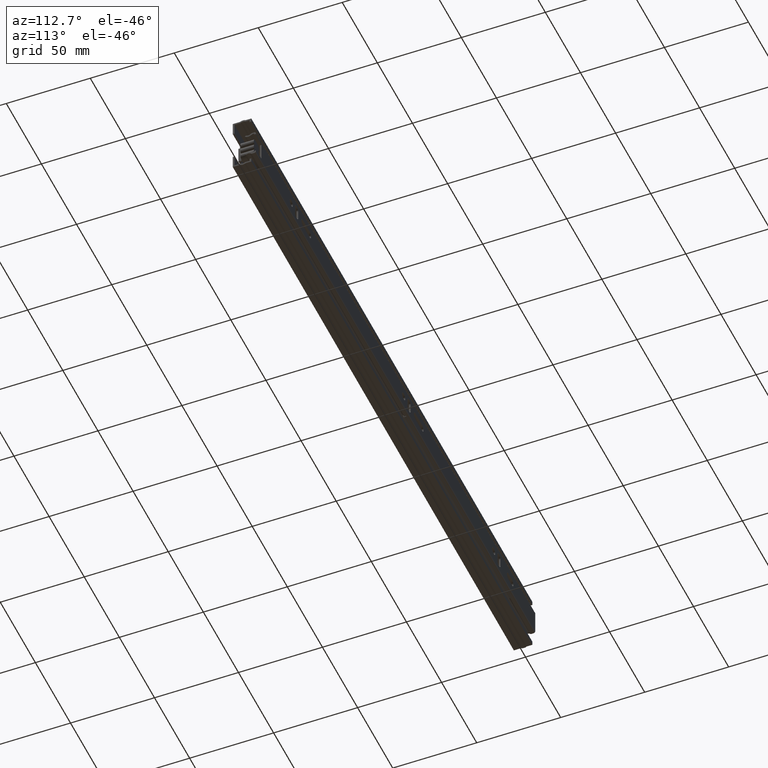
[diagram: clean part render]
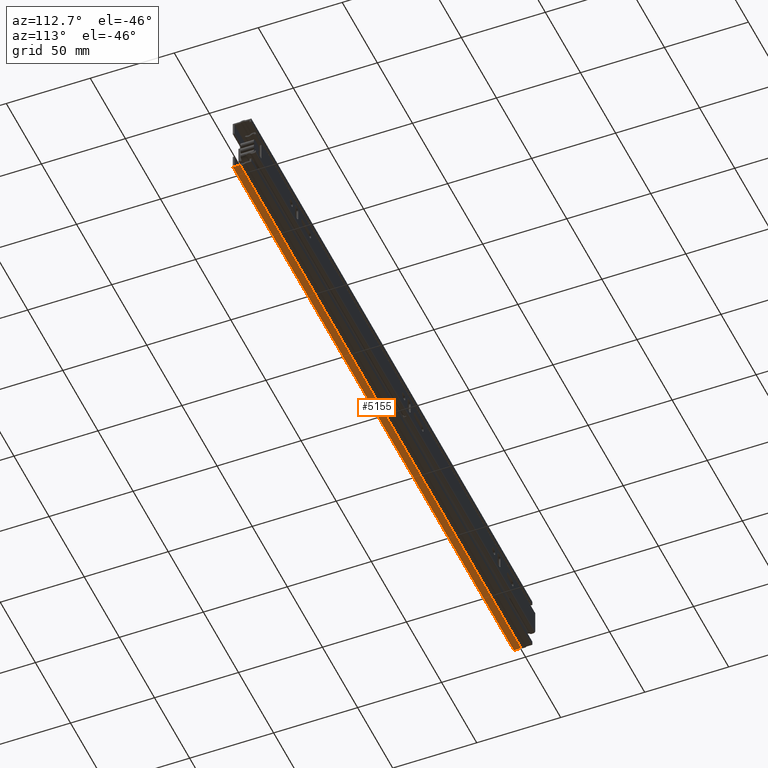
[diagram: same view with one face highlighted and labeled with its STEP entity id]
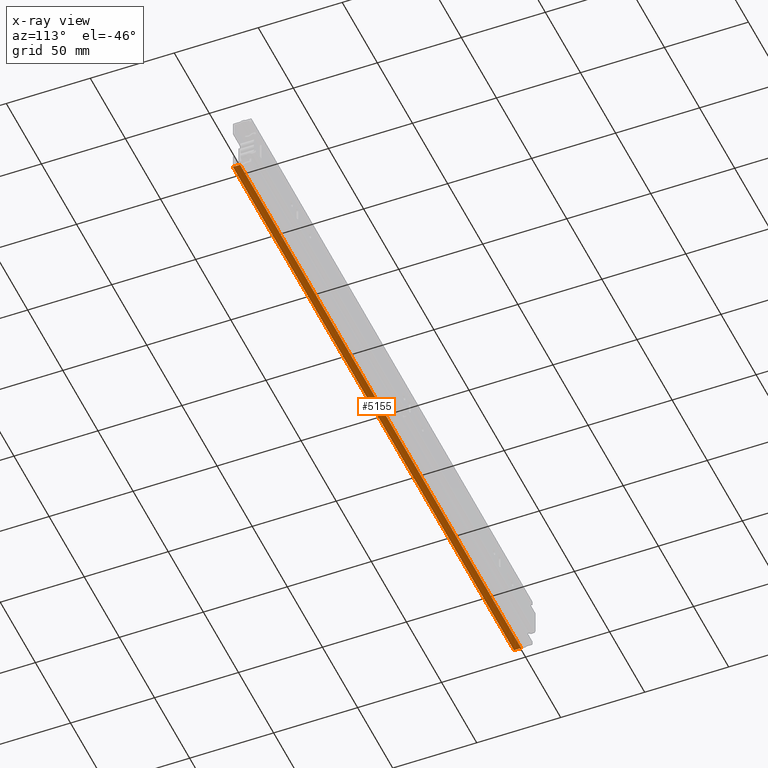
[diagram: x-ray of the same camera — body ghosted, the highlighted face saturated]
A machine part, auxiliary view. The second image highlights one B-rep face of the part: STEP entity #5155.
The next image is the same camera in x-ray: the body ghosted, the highlighted face saturated — about 0% of this face is hidden behind the body in this view.
In plain terms, the highlighted planar face has unit normal (0, 0, -1).
Its self-contained STEP definition (entity closure, byte-faithful):
#363=FACE_OUTER_BOUND('',#653,.T.);
#653=EDGE_LOOP('',(#4026,#4027,#4028,#4029));
#931=LINE('',#7592,#1469);
#1104=LINE('',#8048,#1642);
#1112=LINE('',#8064,#1650);
#1113=LINE('',#8066,#1651);
#1469=VECTOR('',#6029,4.35);
#1642=VECTOR('',#6514,4.35);
#1650=VECTOR('',#6538,400.);
#1651=VECTOR('',#6541,400.);
#2254=VERTEX_POINT('',#7589);
#2255=VERTEX_POINT('',#7591);
#2374=VERTEX_POINT('',#8030);
#2382=VERTEX_POINT('',#8046);
#2776=EDGE_CURVE('',#2254,#2255,#931,.T.);
#3002=EDGE_CURVE('',#2382,#2374,#1104,.T.);
#3010=EDGE_CURVE('',#2382,#2255,#1112,.T.);
#3011=EDGE_CURVE('',#2374,#2254,#1113,.T.);
#4026=ORIENTED_EDGE('',*,*,#3010,.T.);
#4027=ORIENTED_EDGE('',*,*,#2776,.F.);
#4028=ORIENTED_EDGE('',*,*,#3011,.F.);
#4029=ORIENTED_EDGE('',*,*,#3002,.F.);
#4939=PLANE('',#5537);
#5155=ADVANCED_FACE('',(#363),#4939,.T.);
#5537=AXIS2_PLACEMENT_3D('',#8065,#6539,#6540);
#6029=DIRECTION('',(0.,1.,0.));
#6514=DIRECTION('',(0.,-1.,0.));
#6538=DIRECTION('',(1.,0.,0.));
#6539=DIRECTION('center_axis',(0.,0.,-1.));
#6540=DIRECTION('ref_axis',(0.,1.,0.));
#6541=DIRECTION('',(1.,0.,0.));
#7589=CARTESIAN_POINT('',(200.,5.20474889637625E-15,-17.));
#7591=CARTESIAN_POINT('',(200.,4.35000000000001,-17.));
#7592=CARTESIAN_POINT('',(200.,5.20474889637625E-15,-17.));
#8030=CARTESIAN_POINT('',(-200.,5.20474889637625E-15,-17.));
#8046=CARTESIAN_POINT('',(-200.,4.35000000000001,-17.));
#8048=CARTESIAN_POINT('',(-200.,5.20474889637625E-15,-17.));
#8064=CARTESIAN_POINT('',(0.,4.35000000000001,-17.));
#8065=CARTESIAN_POINT('Origin',(0.,5.20474889637625E-15,-17.));
#8066=CARTESIAN_POINT('',(0.,5.20474889637625E-15,-17.));